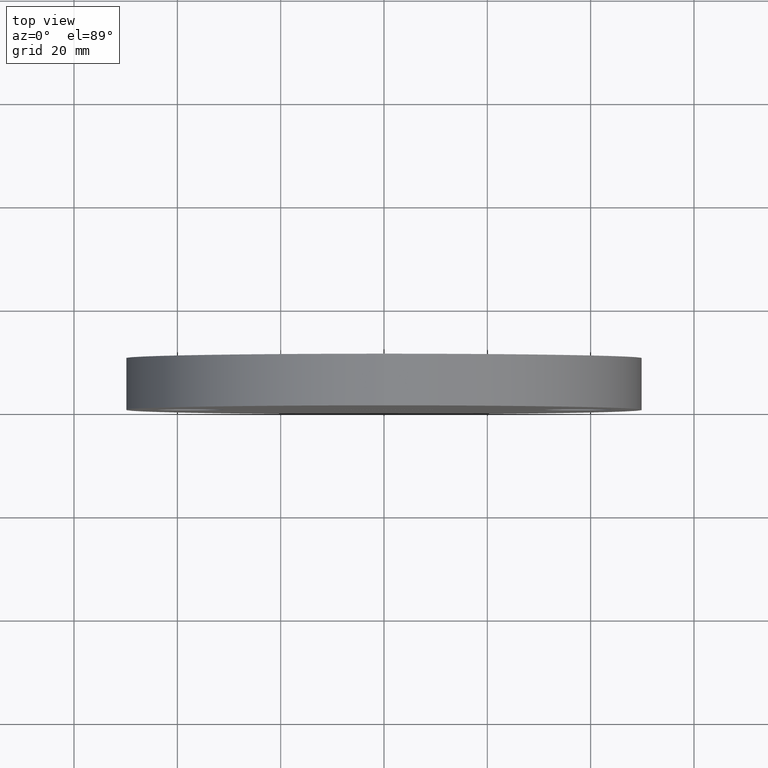
[diagram: clean part render]
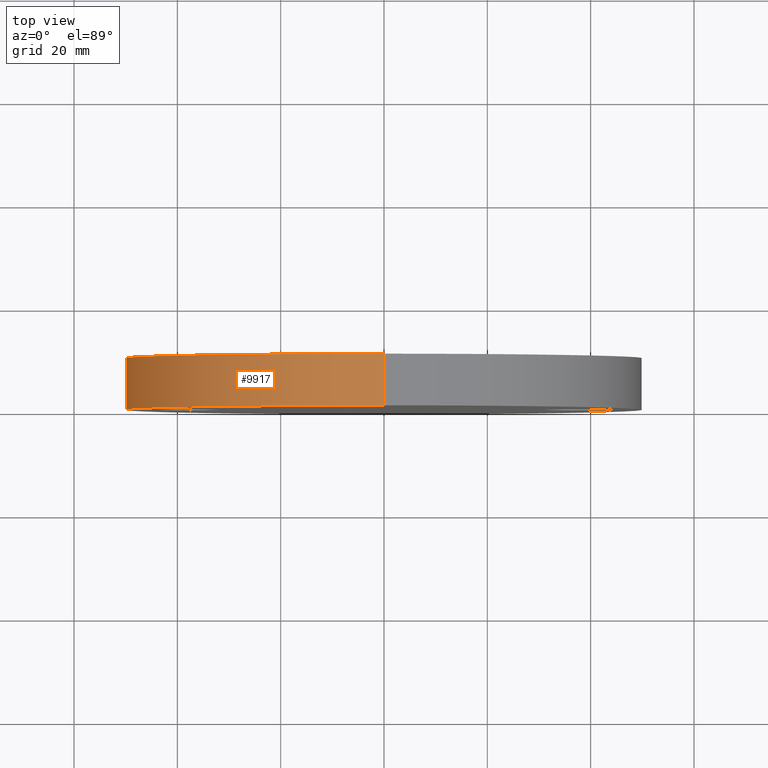
[diagram: same view with one face highlighted and labeled with its STEP entity id]
A machine part, top view. The second image highlights one B-rep face of the part: STEP entity #9917.
In plain terms, the highlighted cylindrical surface (partial cylindrical patch) has radius 50 mm, axis along (-0, -1, -0).
Its self-contained STEP definition (entity closure, byte-faithful):
#599 = AXIS2_PLACEMENT_3D ( 'NONE', #9696, #4911, #12646 ) ;
#852 = VECTOR ( 'NONE', #12634, 1000.000000000000000 ) ;
#1143 = CARTESIAN_POINT ( 'NONE',  ( 0.0000000000000000000, 10.00000000000000000, 0.0000000000000000000 ) ) ;
#1152 = LINE ( 'NONE', #1857, #852 ) ;
#1783 = CARTESIAN_POINT ( 'NONE',  ( 6.123233995736766100E-015, 10.00000000000000000, 50.00000000000000000 ) ) ;
#1857 = CARTESIAN_POINT ( 'NONE',  ( 0.0000000000000000000, 10.00000000000000000, -50.00000000000000000 ) ) ;
#2058 = EDGE_CURVE ( 'NONE', #8873, #11810, #8447, .T. ) ;
#2129 = DIRECTION ( 'NONE',  ( 0.0000000000000000000, 0.0000000000000000000, -1.000000000000000000 ) ) ;
#2293 = CIRCLE ( 'NONE', #599, 50.00000000000000000 ) ;
#2394 = CYLINDRICAL_SURFACE ( 'NONE', #7430, 50.00000000000000000 ) ;
#2875 = VERTEX_POINT ( 'NONE', #4904 ) ;
#3360 = VERTEX_POINT ( 'NONE', #10632 ) ;
#3866 = CARTESIAN_POINT ( 'NONE',  ( 0.0000000000000000000, 10.00000000000000000, 0.0000000000000000000 ) ) ;
#4515 = CIRCLE ( 'NONE', #5551, 50.00000000000000000 ) ;
#4573 = EDGE_CURVE ( 'NONE', #3360, #11810, #2293, .T. ) ;
#4904 = CARTESIAN_POINT ( 'NONE',  ( 0.0000000000000000000, 10.00000000000000000, -50.00000000000000000 ) ) ;
#4911 = DIRECTION ( 'NONE',  ( 0.0000000000000000000, 1.000000000000000000, 0.0000000000000000000 ) ) ;
#4988 = CARTESIAN_POINT ( 'NONE',  ( 6.123233995736766100E-015, 10.00000000000000000, 50.00000000000000000 ) ) ;
#5232 = VECTOR ( 'NONE', #9534, 1000.000000000000000 ) ;
#5551 = AXIS2_PLACEMENT_3D ( 'NONE', #3866, #11680, #12680 ) ;
#5711 = ORIENTED_EDGE ( 'NONE', *, *, #10284, .T. ) ;
#7430 = AXIS2_PLACEMENT_3D ( 'NONE', #1143, #7997, #2129 ) ;
#7491 = CARTESIAN_POINT ( 'NONE',  ( 6.123233995736766100E-015, 0.0000000000000000000, 50.00000000000000000 ) ) ;
#7997 = DIRECTION ( 'NONE',  ( -0.0000000000000000000, -1.000000000000000000, -0.0000000000000000000 ) ) ;
#8447 = LINE ( 'NONE', #1783, #5232 ) ;
#8873 = VERTEX_POINT ( 'NONE', #4988 ) ;
#9123 = FACE_OUTER_BOUND ( 'NONE', #12197, .T. ) ;
#9534 = DIRECTION ( 'NONE',  ( -0.0000000000000000000, -1.000000000000000000, -0.0000000000000000000 ) ) ;
#9696 = CARTESIAN_POINT ( 'NONE',  ( 0.0000000000000000000, 0.0000000000000000000, 0.0000000000000000000 ) ) ;
#9917 = ADVANCED_FACE ( 'NONE', ( #9123 ), #2394, .T. ) ;
#10284 = EDGE_CURVE ( 'NONE', #2875, #3360, #1152, .T. ) ;
#10316 = EDGE_CURVE ( 'NONE', #2875, #8873, #4515, .T. ) ;
#10632 = CARTESIAN_POINT ( 'NONE',  ( 0.0000000000000000000, 0.0000000000000000000, -50.00000000000000000 ) ) ;
#11123 = ORIENTED_EDGE ( 'NONE', *, *, #4573, .T. ) ;
#11680 = DIRECTION ( 'NONE',  ( 0.0000000000000000000, 1.000000000000000000, 0.0000000000000000000 ) ) ;
#11717 = ORIENTED_EDGE ( 'NONE', *, *, #2058, .F. ) ;
#11810 = VERTEX_POINT ( 'NONE', #7491 ) ;
#12197 = EDGE_LOOP ( 'NONE', ( #11717, #12487, #5711, #11123 ) ) ;
#12487 = ORIENTED_EDGE ( 'NONE', *, *, #10316, .F. ) ;
#12634 = DIRECTION ( 'NONE',  ( -0.0000000000000000000, -1.000000000000000000, -0.0000000000000000000 ) ) ;
#12646 = DIRECTION ( 'NONE',  ( 0.0000000000000000000, 0.0000000000000000000, 1.000000000000000000 ) ) ;
#12680 = DIRECTION ( 'NONE',  ( 0.0000000000000000000, 0.0000000000000000000, 1.000000000000000000 ) ) ;